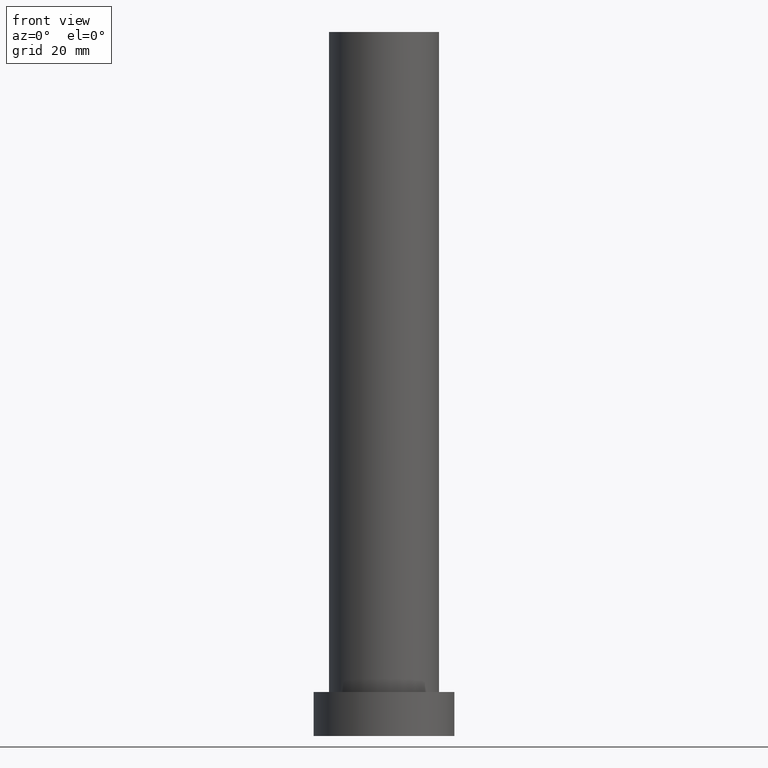
[diagram: clean part render]
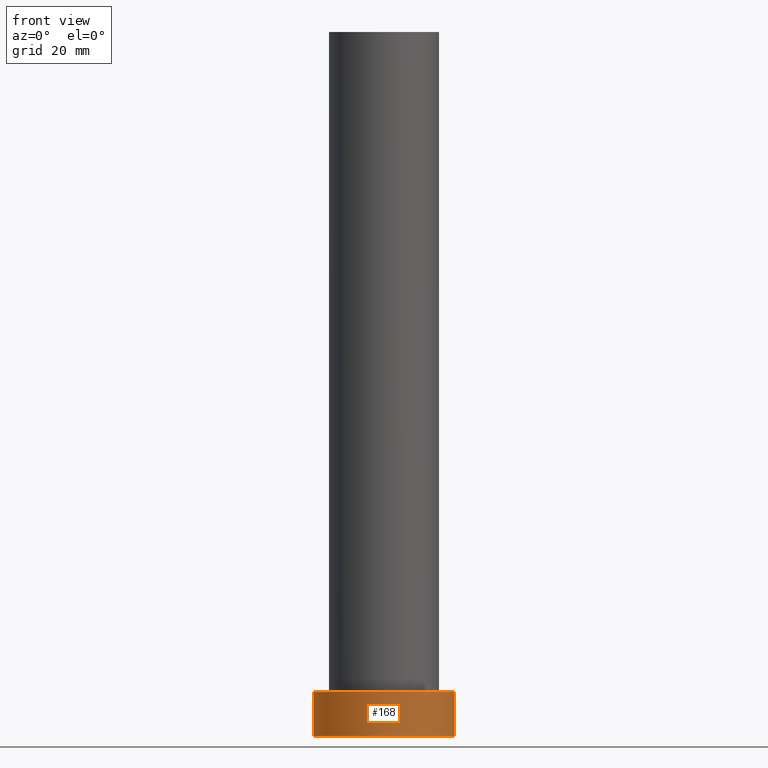
[diagram: same view with one face highlighted and labeled with its STEP entity id]
A machine part, front view. The second image highlights one B-rep face of the part: STEP entity #168.
In plain terms, the highlighted cylindrical surface (partial cylindrical patch) has radius 16 mm, axis along (-0, -0, -1).
Its self-contained STEP definition (entity closure, byte-faithful):
#9 = ORIENTED_EDGE ( 'NONE', *, *, #103, .F. ) ;
#12 = CIRCLE ( 'NONE', #31, 16.00000000000000000 ) ;
#16 = ORIENTED_EDGE ( 'NONE', *, *, #236, .T. ) ;
#20 = CARTESIAN_POINT ( 'NONE',  ( -16.00000000000000000, 0.000000000000000000, 0.000000000000000000 ) ) ;
#23 = AXIS2_PLACEMENT_3D ( 'NONE', #121, #83, #63 ) ;
#25 = LINE ( 'NONE', #175, #108 ) ;
#30 = EDGE_CURVE ( 'NONE', #129, #219, #69, .T. ) ;
#31 = AXIS2_PLACEMENT_3D ( 'NONE', #62, #215, #45 ) ;
#34 = DIRECTION ( 'NONE',  ( 1.000000000000000000, 0.000000000000000000, 0.000000000000000000 ) ) ;
#40 = DIRECTION ( 'NONE',  ( -0.000000000000000000, -0.000000000000000000, -1.000000000000000000 ) ) ;
#45 = DIRECTION ( 'NONE',  ( 1.000000000000000000, 0.000000000000000000, 0.000000000000000000 ) ) ;
#62 = CARTESIAN_POINT ( 'NONE',  ( 0.000000000000000000, 0.000000000000000000, 10.00000000000000000 ) ) ;
#63 = DIRECTION ( 'NONE',  ( -1.000000000000000000, 0.000000000000000000, 0.000000000000000000 ) ) ;
#65 = LINE ( 'NONE', #194, #214 ) ;
#69 = CIRCLE ( 'NONE', #192, 16.00000000000000000 ) ;
#79 = DIRECTION ( 'NONE',  ( -0.000000000000000000, -0.000000000000000000, -1.000000000000000000 ) ) ;
#83 = DIRECTION ( 'NONE',  ( -0.000000000000000000, -0.000000000000000000, -1.000000000000000000 ) ) ;
#99 = ORIENTED_EDGE ( 'NONE', *, *, #226, .F. ) ;
#103 = EDGE_CURVE ( 'NONE', #247, #219, #65, .T. ) ;
#108 = VECTOR ( 'NONE', #79, 1000.000000000000000 ) ;
#115 = EDGE_LOOP ( 'NONE', ( #9, #99, #16, #250 ) ) ;
#121 = CARTESIAN_POINT ( 'NONE',  ( 0.000000000000000000, 0.000000000000000000, 10.00000000000000000 ) ) ;
#128 = DIRECTION ( 'NONE',  ( 0.000000000000000000, 0.000000000000000000, 1.000000000000000000 ) ) ;
#129 = VERTEX_POINT ( 'NONE', #20 ) ;
#142 = CARTESIAN_POINT ( 'NONE',  ( -16.00000000000000000, 0.000000000000000000, 10.00000000000000000 ) ) ;
#156 = CARTESIAN_POINT ( 'NONE',  ( 16.00000000000000000, 1.959434878635765131E-15, 10.00000000000000000 ) ) ;
#168 = ADVANCED_FACE ( 'NONE', ( #210 ), #211, .T. ) ;
#175 = CARTESIAN_POINT ( 'NONE',  ( -16.00000000000000000, 0.000000000000000000, 10.00000000000000000 ) ) ;
#189 = CARTESIAN_POINT ( 'NONE',  ( 0.000000000000000000, 0.000000000000000000, 0.000000000000000000 ) ) ;
#192 = AXIS2_PLACEMENT_3D ( 'NONE', #189, #128, #34 ) ;
#194 = CARTESIAN_POINT ( 'NONE',  ( 16.00000000000000000, 1.959434878635765131E-15, 10.00000000000000000 ) ) ;
#195 = CARTESIAN_POINT ( 'NONE',  ( 16.00000000000000000, 1.959434878635765131E-15, 0.000000000000000000 ) ) ;
#210 = FACE_OUTER_BOUND ( 'NONE', #115, .T. ) ;
#211 = CYLINDRICAL_SURFACE ( 'NONE', #23, 16.00000000000000000 ) ;
#214 = VECTOR ( 'NONE', #40, 1000.000000000000000 ) ;
#215 = DIRECTION ( 'NONE',  ( 0.000000000000000000, 0.000000000000000000, 1.000000000000000000 ) ) ;
#219 = VERTEX_POINT ( 'NONE', #195 ) ;
#222 = VERTEX_POINT ( 'NONE', #142 ) ;
#226 = EDGE_CURVE ( 'NONE', #222, #247, #12, .T. ) ;
#236 = EDGE_CURVE ( 'NONE', #222, #129, #25, .T. ) ;
#247 = VERTEX_POINT ( 'NONE', #156 ) ;
#250 = ORIENTED_EDGE ( 'NONE', *, *, #30, .T. ) ;